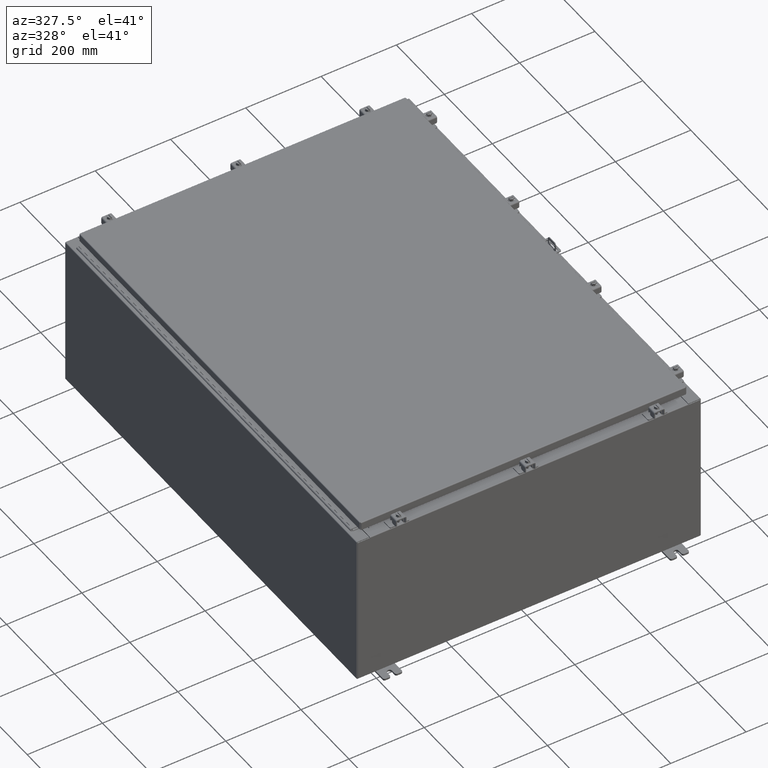
[diagram: clean part render]
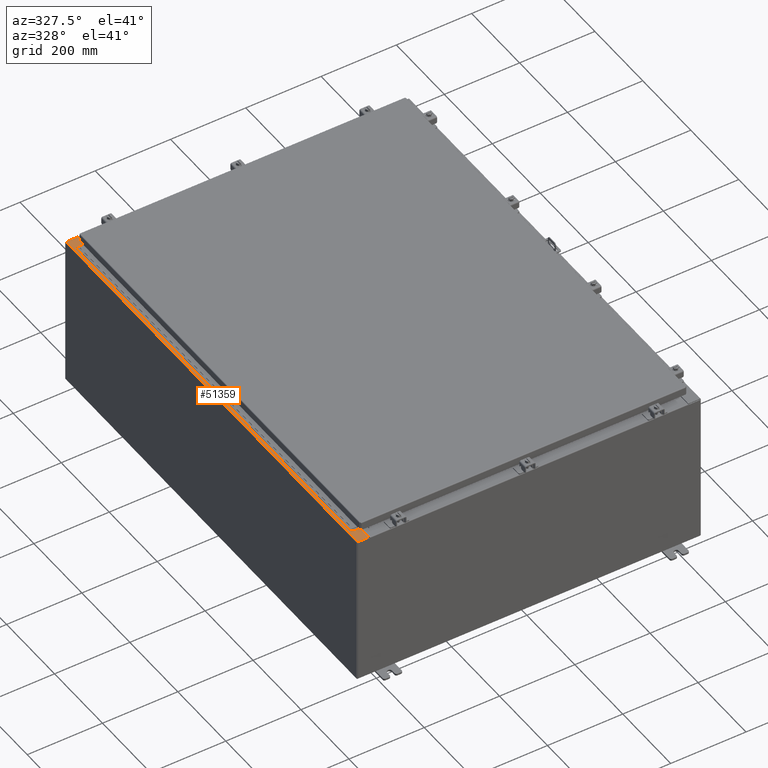
[diagram: same view with one face highlighted and labeled with its STEP entity id]
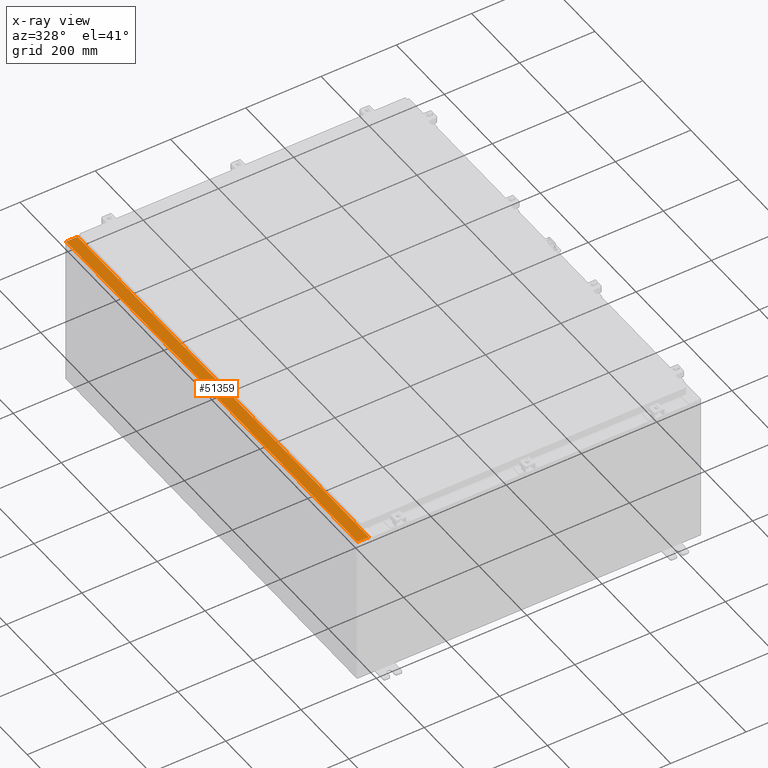
[diagram: x-ray of the same camera — body ghosted, the highlighted face saturated]
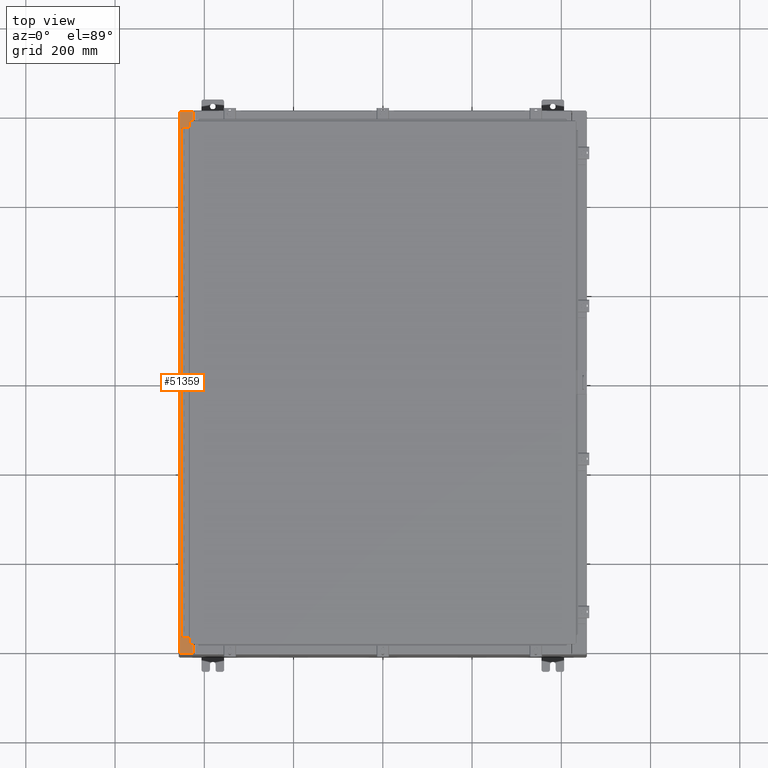
[diagram: same view with one face highlighted and labeled with its STEP entity id]
A machine part, auxiliary view. The second image highlights one B-rep face of the part: STEP entity #51359.
The next image is the same camera in x-ray: the body ghosted, the highlighted face saturated — about 0% of this face is hidden behind the body in this view.
A second angle (top view) of the same face is appended — the face is thin or edge-on in the first view.
In plain terms, the highlighted planar face has unit normal (0, 0, -1).
Its self-contained STEP definition (entity closure, byte-faithful):
#191 = EDGE_LOOP ( 'NONE', ( #30196, #13944, #31642, #729, #13796, #9242, #42609, #2086, #45971, #28835, #36870, #5981 ) ) ;
#447 = CARTESIAN_POINT ( 'NONE',  ( -16.69970000000006000, -22.63109999999998600, 15.92530000000000400 ) ) ;
#729 = ORIENTED_EDGE ( 'NONE', *, *, #28035, .F. ) ;
#1163 = AXIS2_PLACEMENT_3D ( 'NONE', #21727, #50712, #25893 ) ;
#1496 = EDGE_CURVE ( 'NONE', #25315, #10976, #3524, .T. ) ;
#1800 = EDGE_CURVE ( 'NONE', #46020, #12440, #51658, .T. ) ;
#2086 = ORIENTED_EDGE ( 'NONE', *, *, #42639, .F. ) ;
#2220 = DIRECTION ( 'NONE',  ( -0.0000000000000000000, 1.000000000000000000, -0.0000000000000000000 ) ) ;
#3524 = LINE ( 'NONE', #41089, #23144 ) ;
#3649 = DIRECTION ( 'NONE',  ( -1.000000000000000000, 0.0000000000000000000, -5.349571789159788500E-015 ) ) ;
#4114 = CARTESIAN_POINT ( 'NONE',  ( -16.75005000000006200, -22.61242499999998400, 15.92530000000000400 ) ) ;
#5582 = LINE ( 'NONE', #43373, #26493 ) ;
#5981 = ORIENTED_EDGE ( 'NONE', *, *, #40591, .F. ) ;
#5986 = DIRECTION ( 'NONE',  ( -0.0000000000000000000, -1.000000000000000000, -0.0000000000000000000 ) ) ;
#6068 = DIRECTION ( 'NONE',  ( -1.000000000000000000, 0.0000000000000000000, 0.0000000000000000000 ) ) ;
#6310 = VERTEX_POINT ( 'NONE', #9007 ) ;
#6708 = VERTEX_POINT ( 'NONE', #447 ) ;
#6917 = CARTESIAN_POINT ( 'NONE',  ( -8.545434926991847500E-014, 0.0000000000000000000, 15.92530000000009400 ) ) ;
#7004 = VECTOR ( 'NONE', #16109, 39.37007874015748100 ) ;
#7163 = LINE ( 'NONE', #14435, #15694 ) ;
#7436 = CARTESIAN_POINT ( 'NONE',  ( -16.69970000000006000, 22.63109999999999600, 15.92530000000000400 ) ) ;
#7728 = CARTESIAN_POINT ( 'NONE',  ( -16.71270000000006200, -22.59374999999998200, 15.92530000000000400 ) ) ;
#8289 = FACE_OUTER_BOUND ( 'NONE', #191, .T. ) ;
#8308 = DIRECTION ( 'NONE',  ( 1.000000000000000000, 0.0000000000000000000, 0.0000000000000000000 ) ) ;
#8895 = VERTEX_POINT ( 'NONE', #47118 ) ;
#9007 = CARTESIAN_POINT ( 'NONE',  ( -16.75005000000006200, -22.59374999999998200, 15.92530000000000400 ) ) ;
#9242 = ORIENTED_EDGE ( 'NONE', *, *, #52019, .T. ) ;
#9408 = LINE ( 'NONE', #24641, #52322 ) ;
#9873 = CARTESIAN_POINT ( 'NONE',  ( -16.75005000000006200, -22.63109999999998200, 15.92530000000000400 ) ) ;
#10139 = DIRECTION ( 'NONE',  ( -1.000000000000000000, -8.681145560799821800E-014, 0.0000000000000000000 ) ) ;
#10976 = VERTEX_POINT ( 'NONE', #19745 ) ;
#12119 = VECTOR ( 'NONE', #2220, 39.37007874015748100 ) ;
#12350 = EDGE_CURVE ( 'NONE', #16836, #53510, #9408, .T. ) ;
#12440 = VERTEX_POINT ( 'NONE', #22714 ) ;
#13796 = ORIENTED_EDGE ( 'NONE', *, *, #1800, .T. ) ;
#13944 = ORIENTED_EDGE ( 'NONE', *, *, #12350, .T. ) ;
#14435 = CARTESIAN_POINT ( 'NONE',  ( -16.71270000000006200, 22.59374999999999300, 15.92530000000000400 ) ) ;
#14750 = LINE ( 'NONE', #14889, #12119 ) ;
#14889 = CARTESIAN_POINT ( 'NONE',  ( -17.91230000000005900, 23.92529999999998900, 15.92529999999999800 ) ) ;
#15694 = VECTOR ( 'NONE', #5986, 39.37007874015748100 ) ;
#16109 = DIRECTION ( 'NONE',  ( -1.000000000000000000, -8.144358738339257800E-032, -5.349571789159789300E-015 ) ) ;
#16560 = EDGE_CURVE ( 'NONE', #35658, #6310, #53015, .T. ) ;
#16570 = DIRECTION ( 'NONE',  ( 3.161623214578966600E-031, 1.000000000000000000, 1.691333035666432100E-045 ) ) ;
#16836 = VERTEX_POINT ( 'NONE', #7436 ) ;
#18151 = LINE ( 'NONE', #20112, #7004 ) ;
#19745 = CARTESIAN_POINT ( 'NONE',  ( -16.71270000000006200, 22.59374999999999300, 15.92530000000000400 ) ) ;
#20007 = LINE ( 'NONE', #37278, #29759 ) ;
#20112 = CARTESIAN_POINT ( 'NONE',  ( -8.545434926991847500E-014, 23.92529999999998900, 15.92530000000009400 ) ) ;
#21060 = DIRECTION ( 'NONE',  ( 1.000000000000000000, -8.681145560799821800E-014, 0.0000000000000000000 ) ) ;
#21727 = CARTESIAN_POINT ( 'NONE',  ( -16.75005000000006200, 22.61242499999999100, 15.92530000000000400 ) ) ;
#22714 = CARTESIAN_POINT ( 'NONE',  ( -16.69970000000006000, -23.92529999999998600, 15.92530000000000400 ) ) ;
#23144 = VECTOR ( 'NONE', #40043, 39.37007874015748100 ) ;
#23194 = EDGE_CURVE ( 'NONE', #40077, #6708, #30786, .T. ) ;
#23683 = AXIS2_PLACEMENT_3D ( 'NONE', #4114, #33234, #8308 ) ;
#23973 = DIRECTION ( 'NONE',  ( 3.161623214578966600E-031, 1.000000000000000000, 1.691333035666432100E-045 ) ) ;
#24641 = CARTESIAN_POINT ( 'NONE',  ( -16.69970000000006000, 5.279815919650428700E-030, 15.92530000000000400 ) ) ;
#25315 = VERTEX_POINT ( 'NONE', #38457 ) ;
#25413 = CIRCLE ( 'NONE', #23683, 0.01867499999999949400 ) ;
#25893 = DIRECTION ( 'NONE',  ( 1.000000000000000000, 0.0000000000000000000, 0.0000000000000000000 ) ) ;
#25943 = CARTESIAN_POINT ( 'NONE',  ( -1.707810892213751000E-013, -23.92530000000005300, 15.92530000000009400 ) ) ;
#26493 = VECTOR ( 'NONE', #10139, 39.37007874015748100 ) ;
#27086 = VERTEX_POINT ( 'NONE', #31545 ) ;
#27909 = DIRECTION ( 'NONE',  ( 5.349571789159788500E-015, 0.0000000000000000000, -1.000000000000000000 ) ) ;
#28035 = EDGE_CURVE ( 'NONE', #46020, #8895, #14750, .T. ) ;
#28835 = ORIENTED_EDGE ( 'NONE', *, *, #30505, .F. ) ;
#29483 = VECTOR ( 'NONE', #21060, 39.37007874015748100 ) ;
#29602 = VECTOR ( 'NONE', #33670, 39.37007874015748100 ) ;
#29759 = VECTOR ( 'NONE', #16570, 39.37007874015748100 ) ;
#30196 = ORIENTED_EDGE ( 'NONE', *, *, #52343, .F. ) ;
#30505 = EDGE_CURVE ( 'NONE', #10976, #35658, #7163, .T. ) ;
#30786 = LINE ( 'NONE', #37518, #29483 ) ;
#31545 = CARTESIAN_POINT ( 'NONE',  ( -16.75005000000006200, 22.63109999999999300, 15.92530000000000400 ) ) ;
#31642 = ORIENTED_EDGE ( 'NONE', *, *, #31834, .T. ) ;
#31834 = EDGE_CURVE ( 'NONE', #53510, #8895, #18151, .T. ) ;
#33234 = DIRECTION ( 'NONE',  ( -5.349571789159788500E-015, -0.0000000000000000000, 1.000000000000000000 ) ) ;
#33670 = DIRECTION ( 'NONE',  ( 1.000000000000000000, -3.566381192773192400E-015, 5.349571789159789300E-015 ) ) ;
#35658 = VERTEX_POINT ( 'NONE', #52045 ) ;
#36870 = ORIENTED_EDGE ( 'NONE', *, *, #1496, .F. ) ;
#37278 = CARTESIAN_POINT ( 'NONE',  ( -16.69970000000006000, 5.279815919650428700E-030, 15.92530000000000400 ) ) ;
#37518 = CARTESIAN_POINT ( 'NONE',  ( -16.75005000000006200, -22.63109999999998200, 15.92530000000000400 ) ) ;
#38457 = CARTESIAN_POINT ( 'NONE',  ( -16.75005000000006200, 22.59374999999999300, 15.92530000000000400 ) ) ;
#39708 = CIRCLE ( 'NONE', #1163, 0.01867499999999949400 ) ;
#40043 = DIRECTION ( 'NONE',  ( 1.000000000000000000, 0.0000000000000000000, 0.0000000000000000000 ) ) ;
#40077 = VERTEX_POINT ( 'NONE', #9873 ) ;
#40591 = EDGE_CURVE ( 'NONE', #27086, #25315, #39708, .T. ) ;
#41089 = CARTESIAN_POINT ( 'NONE',  ( -16.75005000000006200, 22.59374999999999300, 15.92530000000000400 ) ) ;
#41973 = VECTOR ( 'NONE', #6068, 39.37007874015748100 ) ;
#42609 = ORIENTED_EDGE ( 'NONE', *, *, #23194, .F. ) ;
#42639 = EDGE_CURVE ( 'NONE', #6310, #40077, #25413, .T. ) ;
#43314 = CARTESIAN_POINT ( 'NONE',  ( -16.69970000000006000, 23.92529999999998900, 15.92530000000000400 ) ) ;
#43373 = CARTESIAN_POINT ( 'NONE',  ( -16.69970000000006000, 22.63109999999999600, 15.92530000000000400 ) ) ;
#45971 = ORIENTED_EDGE ( 'NONE', *, *, #16560, .F. ) ;
#46020 = VERTEX_POINT ( 'NONE', #47309 ) ;
#47118 = CARTESIAN_POINT ( 'NONE',  ( -17.91230000000005900, 23.92529999999998900, 15.92529999999999800 ) ) ;
#47309 = CARTESIAN_POINT ( 'NONE',  ( -17.91230000000005900, -23.92529999999998600, 15.92529999999999800 ) ) ;
#50712 = DIRECTION ( 'NONE',  ( -5.349571789159788500E-015, -0.0000000000000000000, 1.000000000000000000 ) ) ;
#51359 = ADVANCED_FACE ( 'NONE', ( #8289 ), #52754, .F. ) ;
#51463 = AXIS2_PLACEMENT_3D ( 'NONE', #6917, #27909, #3649 ) ;
#51658 = LINE ( 'NONE', #25943, #29602 ) ;
#52019 = EDGE_CURVE ( 'NONE', #12440, #6708, #20007, .T. ) ;
#52045 = CARTESIAN_POINT ( 'NONE',  ( -16.71270000000006200, -22.59374999999998200, 15.92530000000000400 ) ) ;
#52322 = VECTOR ( 'NONE', #23973, 39.37007874015748100 ) ;
#52343 = EDGE_CURVE ( 'NONE', #16836, #27086, #5582, .T. ) ;
#52754 = PLANE ( 'NONE',  #51463 ) ;
#53015 = LINE ( 'NONE', #7728, #41973 ) ;
#53510 = VERTEX_POINT ( 'NONE', #43314 ) ;